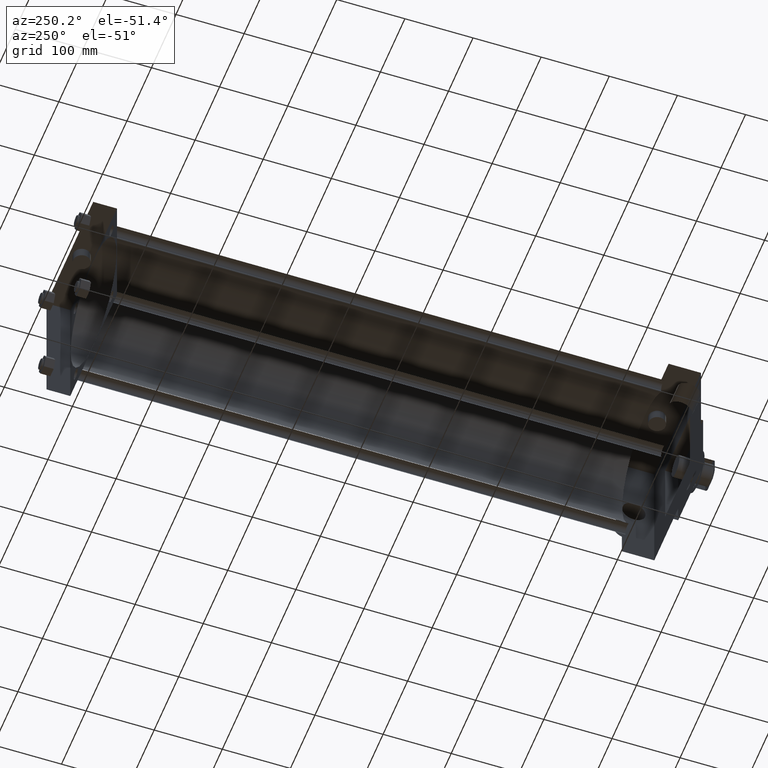
[diagram: clean part render]
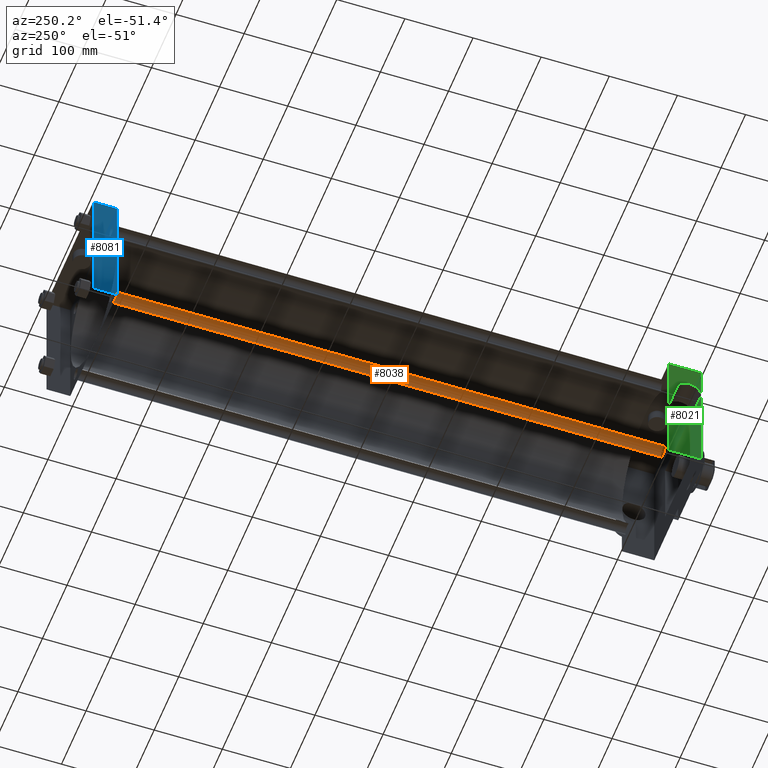
[diagram: same view with three faces highlighted in distinct colors, each labeled with its STEP entity id]
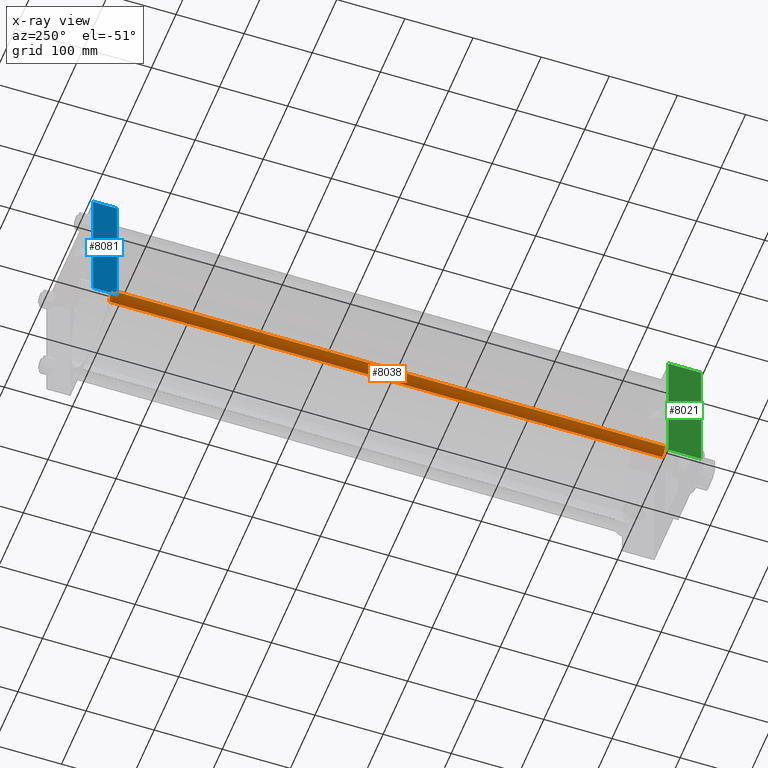
[diagram: x-ray of the same camera — body ghosted, the three highlighted faces saturated]
A machine part, auxiliary view with three faces highlighted in distinct colors.
The next image is the same camera in x-ray (body ghosted, the three faces saturated) — at least one of them is partly hidden behind the body in this view.
Their STEP definitions:

[orange] entity #8038 — the highlighted cylindrical surface (bore or boss wall) has radius 7.9375 mm, axis along (0, -1, 0).
#494=EDGE_CURVE('',#500,#500,#495,.T.);
#495=CIRCLE('',#496,7.937500000E+000);
#496=AXIS2_PLACEMENT_3D('',#497,#498,#499);
#497=CARTESIAN_POINT('',(-7.277100000E+001,9.525000000E+001,-7.277100000E+001));
#498=DIRECTION('',(0.0E+000,1.0E+000,0.0E+000));
#499=DIRECTION('',(1.0E+000,0.0E+000,0.0E+000));
#500=VERTEX_POINT('',#501);
#501=CARTESIAN_POINT('',(-6.483350000E+001,9.525000000E+001,-7.277100000E+001));
#1355=FACE_OUTER_BOUND('',#1357,.T.);
#1356=FACE_BOUND('',#1358,.T.);
#1357=EDGE_LOOP('',(#1359));
#1358=EDGE_LOOP('',(#1360));
#1359=ORIENTED_EDGE('',*,*,#1404,.F.);
#1360=ORIENTED_EDGE('',*,*,#494,.T.);
#1361=CYLINDRICAL_SURFACE('',#1362,7.937500000E+000);
#1362=AXIS2_PLACEMENT_3D('',#1363,#1364,#1365);
#1363=CARTESIAN_POINT('',(-7.277100000E+001,9.048750000E+002,-7.277100000E+001));
#1364=DIRECTION('',(0.0E+000,-1.0E+000,0.0E+000));
#1365=DIRECTION('',(0.0E+000,0.0E+000,-1.0E+000));
#1404=EDGE_CURVE('',#1410,#1410,#1405,.T.);
#1405=CIRCLE('',#1406,7.937500000E+000);
#1406=AXIS2_PLACEMENT_3D('',#1407,#1408,#1409);
#1407=CARTESIAN_POINT('',(-7.277100000E+001,9.048750000E+002,-7.277100000E+001));
#1408=DIRECTION('',(0.0E+000,1.0E+000,0.0E+000));
#1409=DIRECTION('',(1.0E+000,0.0E+000,0.0E+000));
#1410=VERTEX_POINT('',#1411);
#1411=CARTESIAN_POINT('',(-6.483350000E+001,9.048750000E+002,-7.277100000E+001));
#8038=ADVANCED_FACE('',(#1355,#1356),#1361,.T.);

[blue] entity #8081 — the highlighted planar face has unit normal (-1, 0, 0).
#2491=VERTEX_POINT('',#2493);
#2493=CARTESIAN_POINT('',(-9.525000000E+001,9.398000000E+002,-9.525000000E+001));
#2495=EDGE_CURVE('',#2500,#2491,#2496,.T.);
#2496=LINE('',#2497,#2498);
#2497=CARTESIAN_POINT('',(-9.525000000E+001,9.398000000E+002,9.525000000E+001));
#2498=VECTOR('',#2499,1.0E+000);
#2499=DIRECTION('',(0.0E+000,0.0E+000,-1.0E+000));
#2500=VERTEX_POINT('',#2501);
#2501=CARTESIAN_POINT('',(-9.525000000E+001,9.398000000E+002,9.525000000E+001));
#2664=VERTEX_POINT('',#2666);
#2666=CARTESIAN_POINT('',(-9.525000000E+001,9.048750000E+002,-9.525000000E+001));
#2680=VERTEX_POINT('',#2681);
#2681=CARTESIAN_POINT('',(-9.525000000E+001,9.048750000E+002,9.525000000E+001));
#2682=EDGE_CURVE('',#2680,#2664,#2683,.T.);
#2683=LINE('',#2684,#2685);
#2684=CARTESIAN_POINT('',(-9.525000000E+001,9.048750000E+002,9.525000000E+001));
#2685=VECTOR('',#2686,1.0E+000);
#2686=DIRECTION('',(0.0E+000,0.0E+000,-1.0E+000));
#2709=EDGE_CURVE('',#2491,#2664,#2710,.T.);
#2710=LINE('',#2711,#2712);
#2711=CARTESIAN_POINT('',(-9.525000000E+001,9.398000000E+002,-9.525000000E+001));
#2712=VECTOR('',#2713,1.0E+000);
#2713=DIRECTION('',(0.0E+000,-1.0E+000,0.0E+000));
#2746=EDGE_CURVE('',#2500,#2680,#2747,.T.);
#2747=LINE('',#2748,#2749);
#2748=CARTESIAN_POINT('',(-9.525000000E+001,9.398000000E+002,9.525000000E+001));
#2749=VECTOR('',#2750,1.0E+000);
#2750=DIRECTION('',(0.0E+000,-1.0E+000,0.0E+000));
#2765=FACE_OUTER_BOUND('',#2767,.T.);
#2766=FACE_BOUND('',#2768,.T.);
#2767=EDGE_LOOP('',(#2769,#2770,#2771,#2772));
#2768=EDGE_LOOP('',(#2773));
#2769=ORIENTED_EDGE('',*,*,#2682,.F.);
#2770=ORIENTED_EDGE('',*,*,#2746,.F.);
#2771=ORIENTED_EDGE('',*,*,#2495,.T.);
#2772=ORIENTED_EDGE('',*,*,#2709,.T.);
#2773=ORIENTED_EDGE('',*,*,#2774,.T.);
#2774=EDGE_CURVE('',#2780,#2780,#2775,.T.);
#2775=CIRCLE('',#2776,7.540625000E+000);
#2776=AXIS2_PLACEMENT_3D('',#2777,#2778,#2779);
#2777=CARTESIAN_POINT('',(-9.525000000E+001,9.167799800E+002,0.000000000E+000));
#2778=DIRECTION('',(1.0E+000,0.0E+000,0.0E+000));
#2779=DIRECTION('',(0.0E+000,-1.0E+000,0.0E+000));
#2780=VERTEX_POINT('',#2781);
#2781=CARTESIAN_POINT('',(-9.525000000E+001,9.092393550E+002,0.000000000E+000));
#2782=PLANE('',#2783);
#2783=AXIS2_PLACEMENT_3D('',#2784,#2785,#2786);
#2784=CARTESIAN_POINT('',(-9.525000000E+001,9.398000000E+002,9.525000000E+001));
#2785=DIRECTION('',(-1.0E+000,0.0E+000,0.0E+000));
#2786=DIRECTION('',(0.0E+000,0.0E+000,1.0E+000));
#8081=ADVANCED_FACE('',(#2765,#2766),#2782,.T.);

[green] entity #8021 — the highlighted planar face has unit normal (-1, 0, 0).
#511=VERTEX_POINT('',#513);
#513=CARTESIAN_POINT('',(-9.525000000E+001,9.525000000E+001,-9.525000000E+001));
#515=EDGE_CURVE('',#520,#511,#516,.T.);
#516=LINE('',#517,#518);
#517=CARTESIAN_POINT('',(-9.525000000E+001,9.525000000E+001,9.525000000E+001));
#518=VECTOR('',#519,1.0E+000);
#519=DIRECTION('',(0.0E+000,0.0E+000,-1.0E+000));
#520=VERTEX_POINT('',#521);
#521=CARTESIAN_POINT('',(-9.525000000E+001,9.525000000E+001,9.525000000E+001));
#586=VERTEX_POINT('',#587);
#587=CARTESIAN_POINT('',(-9.525000000E+001,4.762500000E+001,-9.525000000E+001));
#588=EDGE_CURVE('',#511,#586,#589,.T.);
#589=LINE('',#590,#591);
#590=CARTESIAN_POINT('',(-9.525000000E+001,9.525000000E+001,-9.525000000E+001));
#591=VECTOR('',#592,1.0E+000);
#592=DIRECTION('',(0.0E+000,-1.0E+000,0.0E+000));
#649=EDGE_CURVE('',#520,#654,#650,.T.);
#650=LINE('',#651,#652);
#651=CARTESIAN_POINT('',(-9.525000000E+001,9.525000000E+001,9.525000000E+001));
#652=VECTOR('',#653,1.0E+000);
#653=DIRECTION('',(0.0E+000,-1.0E+000,0.0E+000));
#654=VERTEX_POINT('',#655);
#655=CARTESIAN_POINT('',(-9.525000000E+001,4.762500000E+001,9.525000000E+001));
#666=FACE_OUTER_BOUND('',#668,.T.);
#667=FACE_BOUND('',#669,.T.);
#668=EDGE_LOOP('',(#670));
#669=EDGE_LOOP('',(#679,#680,#681,#682));
#670=ORIENTED_EDGE('',*,*,#671,.T.);
#671=EDGE_CURVE('',#677,#677,#672,.T.);
#672=CIRCLE('',#673,1.746250000E+001);
#673=AXIS2_PLACEMENT_3D('',#674,#675,#676);
#674=CARTESIAN_POINT('',(-9.525000000E+001,7.773670000E+001,0.000000000E+000));
#675=DIRECTION('',(1.0E+000,0.0E+000,0.0E+000));
#676=DIRECTION('',(0.0E+000,0.0E+000,1.0E+000));
#677=VERTEX_POINT('',#678);
#678=CARTESIAN_POINT('',(-9.525000000E+001,7.773670000E+001,1.746250000E+001));
#679=ORIENTED_EDGE('',*,*,#515,.T.);
#680=ORIENTED_EDGE('',*,*,#588,.T.);
#681=ORIENTED_EDGE('',*,*,#683,.F.);
#682=ORIENTED_EDGE('',*,*,#649,.F.);
#683=EDGE_CURVE('',#654,#586,#684,.T.);
#684=LINE('',#685,#686);
#685=CARTESIAN_POINT('',(-9.525000000E+001,4.762500000E+001,9.525000000E+001));
#686=VECTOR('',#687,1.0E+000);
#687=DIRECTION('',(0.0E+000,0.0E+000,-1.0E+000));
#688=PLANE('',#689);
#689=AXIS2_PLACEMENT_3D('',#690,#691,#692);
#690=CARTESIAN_POINT('',(-9.525000000E+001,9.525000000E+001,9.525000000E+001));
#691=DIRECTION('',(-1.0E+000,0.0E+000,0.0E+000));
#692=DIRECTION('',(0.0E+000,0.0E+000,1.0E+000));
#8021=ADVANCED_FACE('',(#666,#667),#688,.T.);